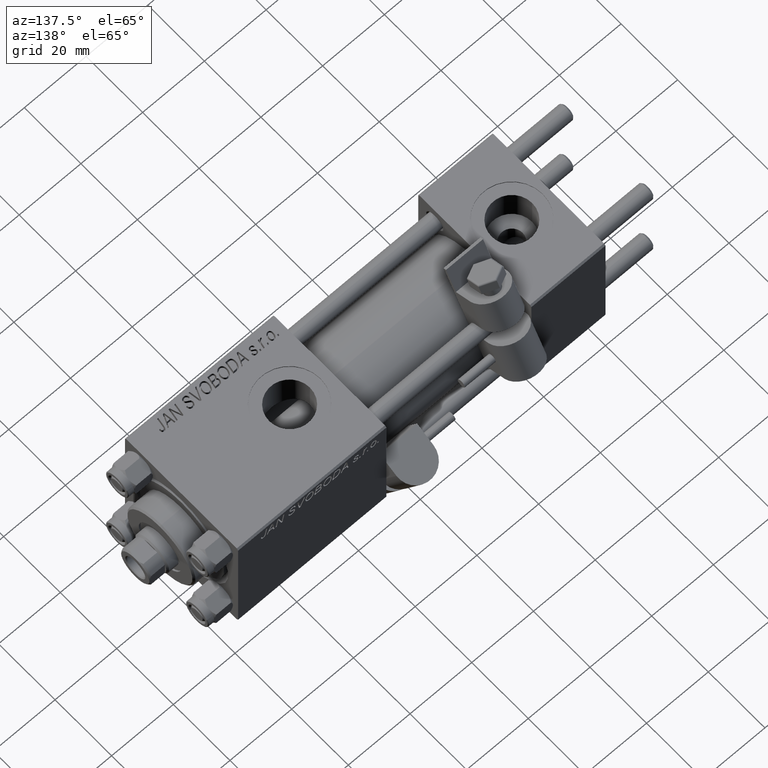
[diagram: clean part render]
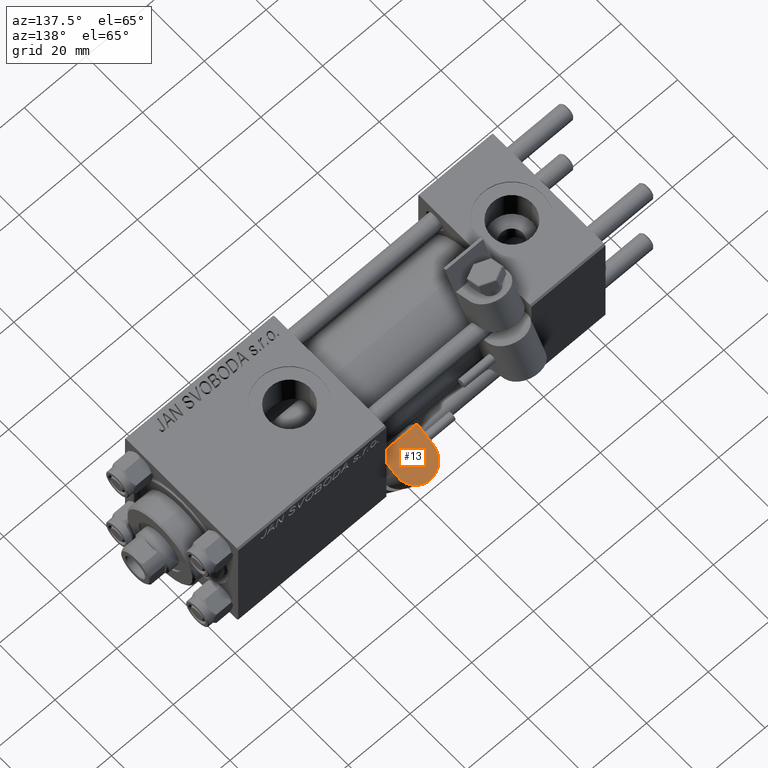
[diagram: same view with one face highlighted and labeled with its STEP entity id]
A machine part, auxiliary view. The second image highlights one B-rep face of the part: STEP entity #13.
In plain terms, the highlighted planar face has unit normal (0, 0.4495, 0.8933).
Its self-contained STEP definition (entity closure, byte-faithful):
#13 = ADVANCED_FACE ( 'NONE', ( #27517 ), #4361, .T. ) ;
#4361 = PLANE ( 'NONE',  #24349 ) ;
#4602 = DIRECTION ( 'NONE',  ( 1.000000000000000000, 0.000000000000000000, 0.000000000000000000 ) ) ;
#5960 = VECTOR ( 'NONE', #18231, 1000.000000000000000 ) ;
#6302 = ORIENTED_EDGE ( 'NONE', *, *, #35167, .T. ) ;
#6365 = DIRECTION ( 'NONE',  ( 0.000000000000000000, -1.000000000000000000, -1.334402673828313339E-16 ) ) ;
#9642 = ORIENTED_EDGE ( 'NONE', *, *, #49215, .T. ) ;
#10915 = VECTOR ( 'NONE', #6365, 1000.000000000000000 ) ;
#11177 = EDGE_CURVE ( 'NONE', #14194, #26478, #46703, .T. ) ;
#11890 = DIRECTION ( 'NONE',  ( 1.000000000000000000, 0.000000000000000000, 0.000000000000000000 ) ) ;
#12582 = DIRECTION ( 'NONE',  ( 0.000000000000000000, 0.000000000000000000, -1.000000000000000000 ) ) ;
#12954 = VERTEX_POINT ( 'NONE', #27164 ) ;
#14194 = VERTEX_POINT ( 'NONE', #41796 ) ;
#15488 = CARTESIAN_POINT ( 'NONE',  ( 27.24000000000000199, 6.500000000000000000, 2.255140518769849223E-14 ) ) ;
#16253 = AXIS2_PLACEMENT_3D ( 'NONE', #15488, #11890, #43521 ) ;
#17185 = EDGE_CURVE ( 'NONE', #26478, #17282, #37788, .T. ) ;
#17282 = VERTEX_POINT ( 'NONE', #26713 ) ;
#18231 = DIRECTION ( 'NONE',  ( -0.000000000000000000, 1.000000000000000000, 1.334402673828313339E-16 ) ) ;
#19704 = VECTOR ( 'NONE', #46957, 1000.000000000000000 ) ;
#20044 = CARTESIAN_POINT ( 'NONE',  ( 27.24000000000000199, 6.500000000000000000, 2.255140518769849223E-14 ) ) ;
#23370 = ORIENTED_EDGE ( 'NONE', *, *, #17185, .T. ) ;
#24349 = AXIS2_PLACEMENT_3D ( 'NONE', #20044, #4602, #12582 ) ;
#26478 = VERTEX_POINT ( 'NONE', #41326 ) ;
#26713 = CARTESIAN_POINT ( 'NONE',  ( 27.24000000000000199, 6.500000000000000000, -5.999999999999980460 ) ) ;
#27164 = CARTESIAN_POINT ( 'NONE',  ( 27.24000000000000199, 6.499999999999999112, 6.000000000000006217 ) ) ;
#27517 = FACE_OUTER_BOUND ( 'NONE', #38272, .T. ) ;
#28750 = LINE ( 'NONE', #44692, #10915 ) ;
#35167 = EDGE_CURVE ( 'NONE', #17282, #12954, #47461, .T. ) ;
#37788 = LINE ( 'NONE', #41644, #5960 ) ;
#38272 = EDGE_LOOP ( 'NONE', ( #23370, #6302, #9642, #50225 ) ) ;
#39493 = CARTESIAN_POINT ( 'NONE',  ( 27.24000000000000199, 0.000000000000000000, 6.000000000000005329 ) ) ;
#41326 = CARTESIAN_POINT ( 'NONE',  ( 27.24000000000000199, 0.000000000000000000, -6.000000000000000000 ) ) ;
#41644 = CARTESIAN_POINT ( 'NONE',  ( 27.24000000000000199, 6.500000000000000000, -5.999999999999999112 ) ) ;
#41796 = CARTESIAN_POINT ( 'NONE',  ( 27.24000000000000199, 0.000000000000000000, 6.000000000000005329 ) ) ;
#43521 = DIRECTION ( 'NONE',  ( 0.000000000000000000, 0.000000000000000000, -1.000000000000000000 ) ) ;
#44692 = CARTESIAN_POINT ( 'NONE',  ( 27.24000000000000199, 6.499999999999999112, 6.000000000000006217 ) ) ;
#46703 = LINE ( 'NONE', #39493, #19704 ) ;
#46957 = DIRECTION ( 'NONE',  ( 0.000000000000000000, 0.000000000000000000, -1.000000000000000000 ) ) ;
#47461 = CIRCLE ( 'NONE', #16253, 6.000000000000002665 ) ;
#49215 = EDGE_CURVE ( 'NONE', #12954, #14194, #28750, .T. ) ;
#50225 = ORIENTED_EDGE ( 'NONE', *, *, #11177, .T. ) ;